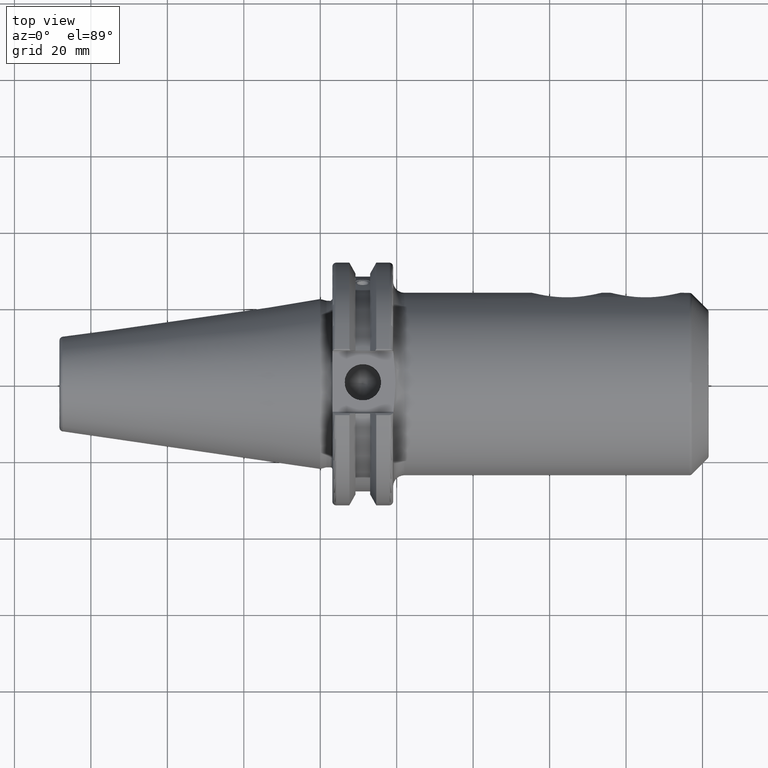
[diagram: clean part render]
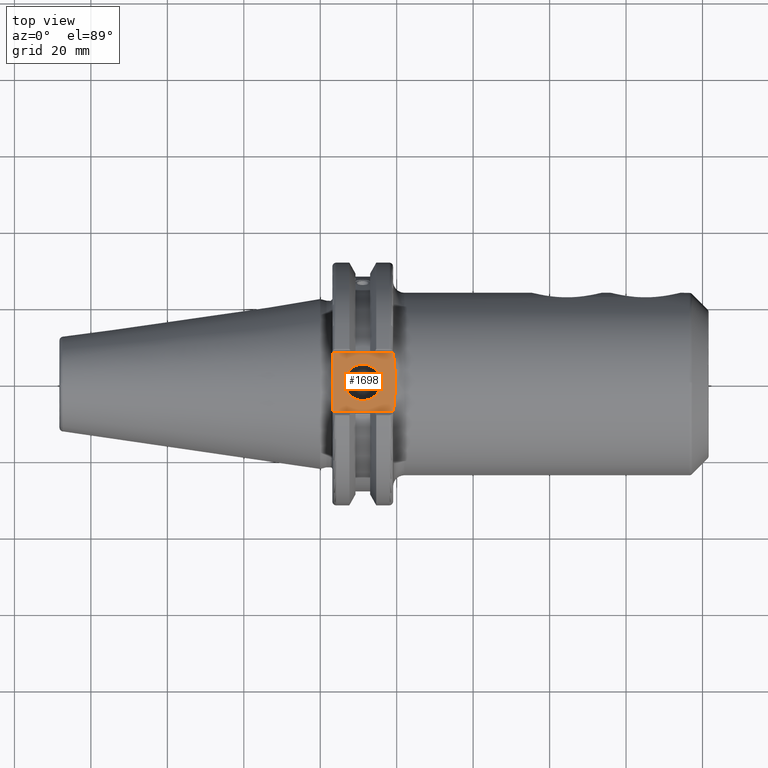
[diagram: same view with one face highlighted and labeled with its STEP entity id]
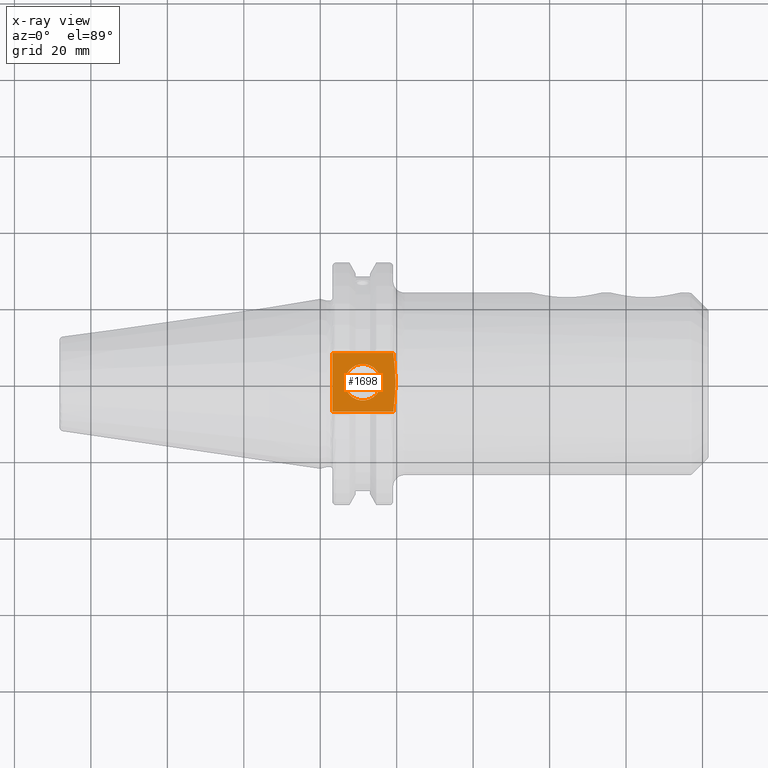
[diagram: x-ray of the same camera — body ghosted, the highlighted face saturated]
A machine part, top view. The second image highlights one B-rep face of the part: STEP entity #1698.
The next image is the same camera in x-ray: the body ghosted, the highlighted face saturated — about 0% of this face is hidden behind the body in this view.
In plain terms, the highlighted planar face has unit normal (0, 0, 1).
Its self-contained STEP definition (entity closure, byte-faithful):
#75=PLANE('',#1909);
#95=FACE_BOUND('',#343,.T.);
#233=FACE_OUTER_BOUND('',#342,.T.);
#342=EDGE_LOOP('',(#1569,#1570,#1571,#1572));
#343=EDGE_LOOP('',(#1573));
#422=CIRCLE('',#1897,4.7625);
#481=LINE('',#3155,#570);
#503=LINE('',#3372,#592);
#505=LINE('',#3375,#594);
#570=VECTOR('',#2221,10.);
#592=VECTOR('',#2305,10.);
#594=VECTOR('',#2309,10.);
#626=B_SPLINE_CURVE_WITH_KNOTS('',3,(#2695,#2696,#2697,#2698,#2699,#2700,
#2701,#2702,#2703,#2704,#2705,#2706,#2707,#2708),.UNSPECIFIED.,.F.,.F.,
(4,2,2,2,2,2,4),(2.5982442477704,2.69300090795709,3.00822809968691,3.32345529141672,
3.63868248314654,3.95390967487636,4.04866633401975),.UNSPECIFIED.);
#699=VERTEX_POINT('',#2689);
#700=VERTEX_POINT('',#2694);
#786=VERTEX_POINT('',#3152);
#787=VERTEX_POINT('',#3154);
#829=VERTEX_POINT('',#3411);
#885=EDGE_CURVE('',#700,#699,#626,.F.);
#1001=EDGE_CURVE('',#786,#787,#481,.T.);
#1058=EDGE_CURVE('',#700,#786,#503,.T.);
#1060=EDGE_CURVE('',#787,#699,#505,.T.);
#1075=EDGE_CURVE('',#829,#829,#422,.T.);
#1569=ORIENTED_EDGE('',*,*,#1058,.F.);
#1570=ORIENTED_EDGE('',*,*,#885,.T.);
#1571=ORIENTED_EDGE('',*,*,#1060,.F.);
#1572=ORIENTED_EDGE('',*,*,#1001,.F.);
#1573=ORIENTED_EDGE('',*,*,#1075,.T.);
#1698=ADVANCED_FACE('',(#233,#95),#75,.T.);
#1897=AXIS2_PLACEMENT_3D('',#3412,#2344,#2345);
#1909=AXIS2_PLACEMENT_3D('',#3425,#2369,#2370);
#2221=DIRECTION('',(0.,1.,0.));
#2305=DIRECTION('',(-1.,1.31581988103722E-16,0.));
#2309=DIRECTION('',(1.,0.,0.));
#2344=DIRECTION('center_axis',(0.,0.,-1.));
#2345=DIRECTION('ref_axis',(1.,0.,0.));
#2369=DIRECTION('center_axis',(0.,0.,1.));
#2370=DIRECTION('ref_axis',(1.,0.,0.));
#2689=CARTESIAN_POINT('',(19.1376824479696,7.69000001127472,25.0000000056374));
#2694=CARTESIAN_POINT('',(19.1376824514381,-7.69000000015696,25.0000000000523));
#2695=CARTESIAN_POINT('Ctrl Pts',(19.1376824506201,7.69000001146293,25.));
#2696=CARTESIAN_POINT('Ctrl Pts',(19.1625604410244,7.3477340416941,25.));
#2697=CARTESIAN_POINT('Ctrl Pts',(19.1909267495362,7.01296912209475,25.));
#2698=CARTESIAN_POINT('Ctrl Pts',(19.3146466893475,5.65196800887506,25.));
#2699=CARTESIAN_POINT('Ctrl Pts',(19.4450175874642,4.50344584961346,25.));
#2700=CARTESIAN_POINT('Ctrl Pts',(19.6467687258613,2.20324028234168,25.));
#2701=CARTESIAN_POINT('Ctrl Pts',(19.7089267418554,1.05075730576606,25.));
#2702=CARTESIAN_POINT('Ctrl Pts',(19.7089267418554,-1.05075730576606,25.));
#2703=CARTESIAN_POINT('Ctrl Pts',(19.6467687258613,-2.20324028234168,25.));
#2704=CARTESIAN_POINT('Ctrl Pts',(19.4450175874642,-4.50344584961346,25.));
#2705=CARTESIAN_POINT('Ctrl Pts',(19.3146466893475,-5.65196800887506,25.));
#2706=CARTESIAN_POINT('Ctrl Pts',(19.190926749851,-7.01296911863136,25.));
#2707=CARTESIAN_POINT('Ctrl Pts',(19.1625604416486,-7.34773403432218,25.));
#2708=CARTESIAN_POINT('Ctrl Pts',(19.1376824514419,-7.69000000015724,25.));
#3152=CARTESIAN_POINT('',(3.175,-7.68999999999999,25.));
#3154=CARTESIAN_POINT('',(3.175,7.69,25.));
#3155=CARTESIAN_POINT('',(3.175,15.875,25.));
#3372=CARTESIAN_POINT('',(9.44125,-7.69,25.));
#3375=CARTESIAN_POINT('',(17.87875,7.69,25.));
#3411=CARTESIAN_POINT('',(6.3716,-5.83238038093927E-16,25.));
#3412=CARTESIAN_POINT('Origin',(11.1341,0.,25.));
#3425=CARTESIAN_POINT('Origin',(15.7075,0.,25.));